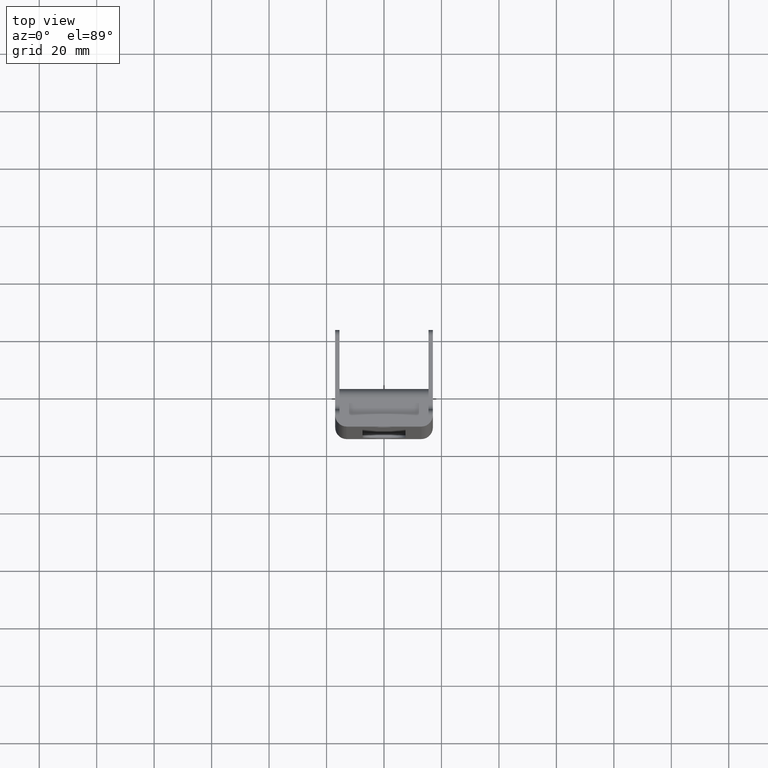
[diagram: clean part render]
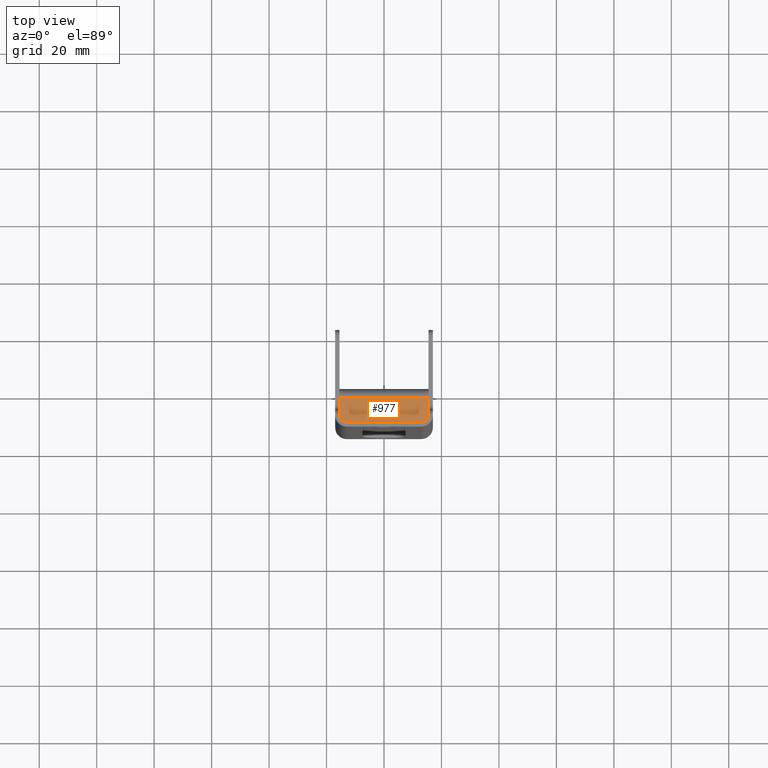
[diagram: same view with one face highlighted and labeled with its STEP entity id]
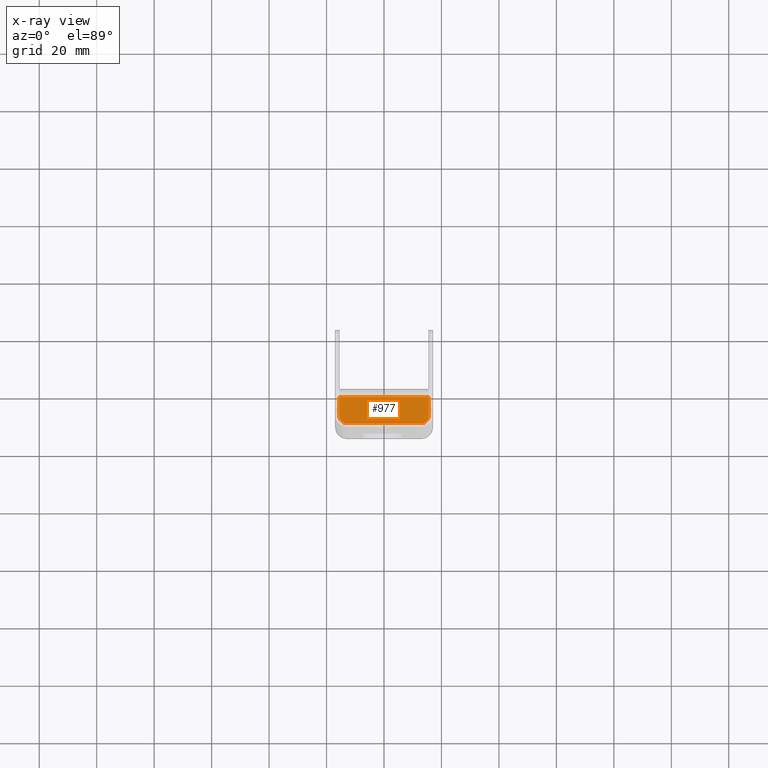
[diagram: x-ray of the same camera — body ghosted, the highlighted face saturated]
A machine part, top view. The second image highlights one B-rep face of the part: STEP entity #977.
The next image is the same camera in x-ray: the body ghosted, the highlighted face saturated — about 0% of this face is hidden behind the body in this view.
In plain terms, the highlighted planar face has unit normal (-0, -0, -1).
Its self-contained STEP definition (entity closure, byte-faithful):
#60=CIRCLE('',#1060,2.5);
#61=CIRCLE('',#1061,2.5);
#136=ORIENTED_EDGE('',*,*,#424,.T.);
#137=ORIENTED_EDGE('',*,*,#425,.T.);
#138=ORIENTED_EDGE('',*,*,#426,.T.);
#139=ORIENTED_EDGE('',*,*,#427,.T.);
#140=ORIENTED_EDGE('',*,*,#419,.T.);
#141=ORIENTED_EDGE('',*,*,#428,.T.);
#419=EDGE_CURVE('',#563,#564,#648,.T.);
#424=EDGE_CURVE('',#568,#569,#652,.T.);
#425=EDGE_CURVE('',#569,#570,#653,.F.);
#426=EDGE_CURVE('',#570,#571,#654,.T.);
#427=EDGE_CURVE('',#571,#563,#60,.T.);
#428=EDGE_CURVE('',#564,#568,#61,.T.);
#563=VERTEX_POINT('',#1532);
#564=VERTEX_POINT('',#1533);
#568=VERTEX_POINT('',#1543);
#569=VERTEX_POINT('',#1544);
#570=VERTEX_POINT('',#1546);
#571=VERTEX_POINT('',#1548);
#648=LINE('',#1531,#736);
#652=LINE('',#1542,#740);
#653=LINE('',#1545,#741);
#654=LINE('',#1547,#742);
#736=VECTOR('',#1204,1000.);
#740=VECTOR('',#1212,1000.);
#741=VECTOR('',#1213,1000.);
#742=VECTOR('',#1214,1000.);
#817=EDGE_LOOP('',(#136,#137,#138,#139,#140,#141));
#885=FACE_BOUND('',#817,.T.);
#948=PLANE('',#1059);
#977=ADVANCED_FACE('',(#885),#948,.F.);
#1059=AXIS2_PLACEMENT_3D('',#1541,#1210,#1211);
#1060=AXIS2_PLACEMENT_3D('',#1549,#1215,#1216);
#1061=AXIS2_PLACEMENT_3D('',#1550,#1217,#1218);
#1204=DIRECTION('',(1.,-4.06163832661068E-16,-6.76398658185478E-32));
#1210=DIRECTION('',(-3.56541076982207E-30,-8.6117241928882E-15,-1.));
#1211=DIRECTION('',(-4.06163832661068E-16,-1.,8.6117241928882E-15));
#1212=DIRECTION('',(4.06163832661068E-16,1.,-8.6117241928882E-15));
#1213=DIRECTION('',(1.,-4.06163832661068E-16,-6.76398658185534E-32));
#1214=DIRECTION('',(-2.40952073044229E-16,-1.,8.6117241928882E-15));
#1215=DIRECTION('',(3.56541076982207E-30,8.6117241928882E-15,1.));
#1216=DIRECTION('',(-4.06163832661068E-16,-1.,3.32494788514936E-15));
#1217=DIRECTION('',(3.56541076982207E-30,8.6117241928882E-15,1.));
#1218=DIRECTION('',(-4.06163832661068E-16,-1.,3.32494788514936E-15));
#1531=CARTESIAN_POINT('',(-2.06952865992549E-16,-32.5130367319009,103.5));
#1532=CARTESIAN_POINT('',(-12.9999999999999,-32.5130367319009,103.5));
#1533=CARTESIAN_POINT('',(13.,-32.5130367319026,103.5));
#1541=CARTESIAN_POINT('',(4.66701312594102E-15,-20.5130367318991,103.5));
#1542=CARTESIAN_POINT('',(15.5000000000001,-20.5130367318991,103.5));
#1543=CARTESIAN_POINT('',(15.5,-30.0130367319026,103.5));
#1544=CARTESIAN_POINT('',(15.5000000000001,-23.5130367319009,103.5));
#1545=CARTESIAN_POINT('',(-10.,-23.5130367319009,103.5));
#1546=CARTESIAN_POINT('',(-15.4999999999999,-23.5130367319009,103.5));
#1547=CARTESIAN_POINT('',(-15.4999999999998,-20.5130367318991,103.5));
#1548=CARTESIAN_POINT('',(-15.4999999999998,-30.0130367319026,103.5));
#1549=CARTESIAN_POINT('',(-12.9999999999998,-30.013036731901,103.5));
#1550=CARTESIAN_POINT('',(13.0000000000001,-30.0130367319009,103.5));